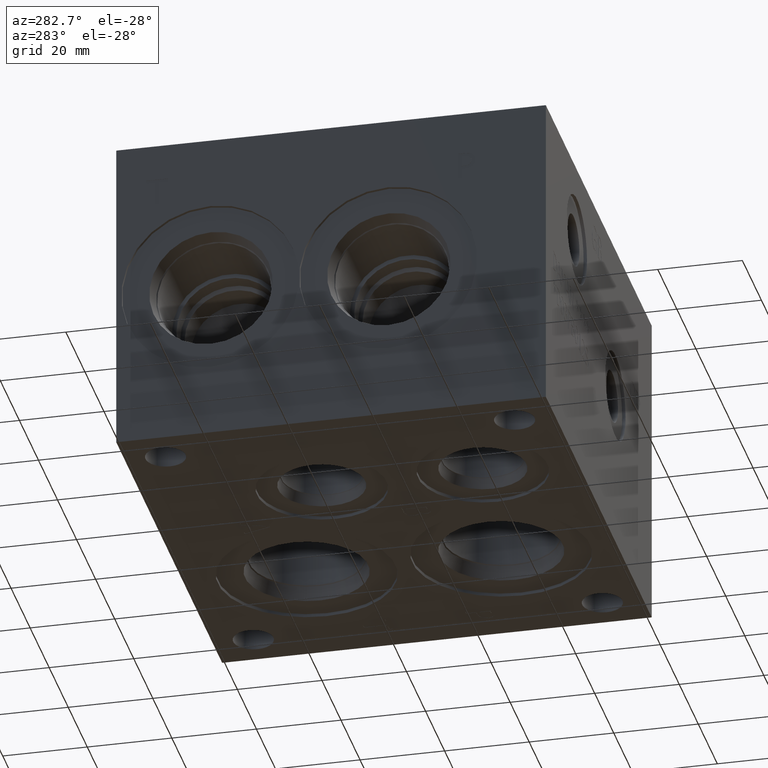
[diagram: clean part render]
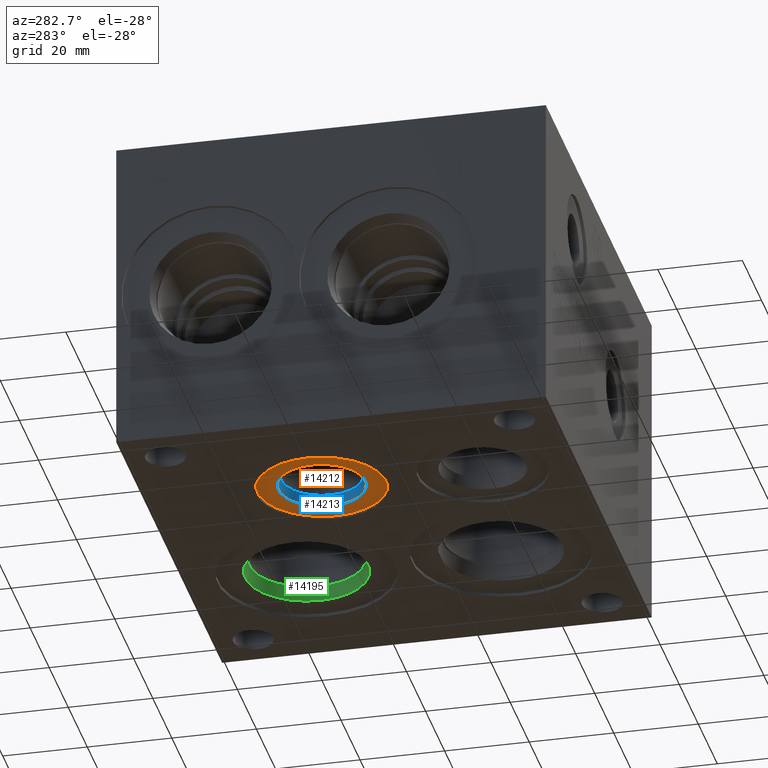
[diagram: same view with three faces highlighted in distinct colors, each labeled with its STEP entity id]
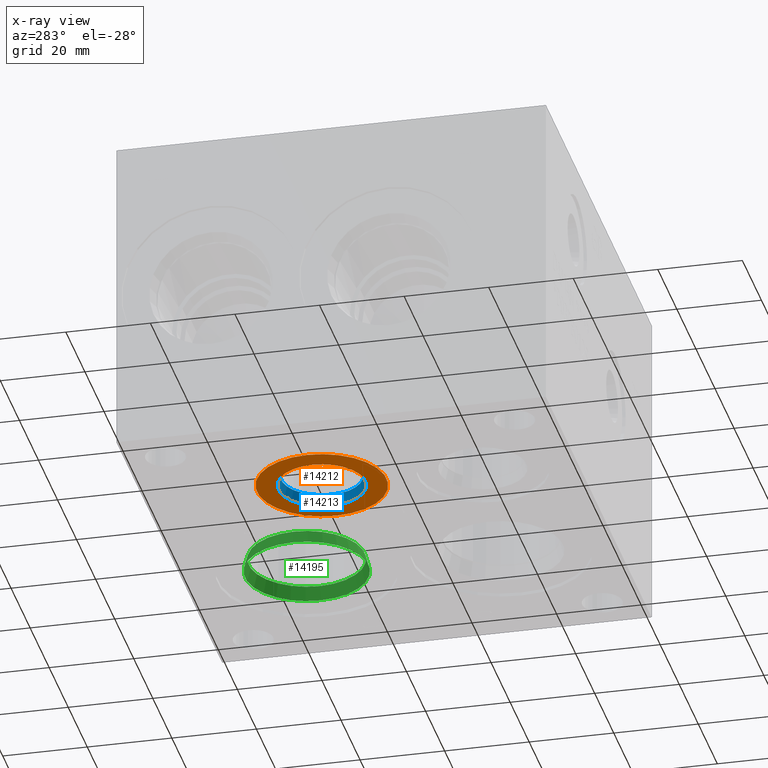
[diagram: x-ray of the same camera — body ghosted, the three highlighted faces saturated]
A machine part, auxiliary view with three faces highlighted in distinct colors.
The next image is the same camera in x-ray (body ghosted, the three faces saturated) — at least one of them is partly hidden behind the body in this view.
Their STEP definitions:

[orange] entity #14212 — the highlighted planar face has unit normal (0, 0, 1).
#282=CIRCLE('',#14894,15.3162);
#283=CIRCLE('',#14895,15.3162);
#284=CIRCLE('',#14897,10.2997);
#285=CIRCLE('',#14898,10.2997);
#496=FACE_BOUND('',#2382,.T.);
#899=PLANE('',#14896);
#1565=FACE_OUTER_BOUND('',#2381,.T.);
#2381=EDGE_LOOP('',(#12319,#12320));
#2382=EDGE_LOOP('',(#12321,#12322));
#6704=VERTEX_POINT('',#24389);
#6705=VERTEX_POINT('',#24391);
#6706=VERTEX_POINT('',#24395);
#6707=VERTEX_POINT('',#24396);
#8628=EDGE_CURVE('',#6704,#6705,#282,.T.);
#8629=EDGE_CURVE('',#6705,#6704,#283,.T.);
#8630=EDGE_CURVE('',#6706,#6707,#284,.T.);
#8631=EDGE_CURVE('',#6707,#6706,#285,.T.);
#12319=ORIENTED_EDGE('',*,*,#8629,.F.);
#12320=ORIENTED_EDGE('',*,*,#8628,.F.);
#12321=ORIENTED_EDGE('',*,*,#8630,.T.);
#12322=ORIENTED_EDGE('',*,*,#8631,.T.);
#14212=ADVANCED_FACE('',(#1565,#496),#899,.F.);
#14894=AXIS2_PLACEMENT_3D('',#24392,#17486,#17487);
#14895=AXIS2_PLACEMENT_3D('',#24393,#17488,#17489);
#14896=AXIS2_PLACEMENT_3D('',#24394,#17490,#17491);
#14897=AXIS2_PLACEMENT_3D('',#24397,#17492,#17493);
#14898=AXIS2_PLACEMENT_3D('',#24398,#17494,#17495);
#17486=DIRECTION('center_axis',(0.,0.,1.));
#17487=DIRECTION('ref_axis',(1.,0.,0.));
#17488=DIRECTION('center_axis',(0.,0.,1.));
#17489=DIRECTION('ref_axis',(1.,0.,0.));
#17490=DIRECTION('center_axis',(0.,0.,1.));
#17491=DIRECTION('ref_axis',(1.,0.,0.));
#17492=DIRECTION('center_axis',(0.,0.,1.));
#17493=DIRECTION('ref_axis',(1.,0.,0.));
#17494=DIRECTION('center_axis',(0.,0.,1.));
#17495=DIRECTION('ref_axis',(1.,0.,0.));
#24389=CARTESIAN_POINT('',(17.2212,60.325,0.7874));
#24391=CARTESIAN_POINT('',(47.8536,60.325,0.7874));
#24392=CARTESIAN_POINT('Origin',(32.5374,60.325,0.7874));
#24393=CARTESIAN_POINT('Origin',(32.5374,60.325,0.7874));
#24394=CARTESIAN_POINT('Origin',(42.8371,60.325,0.7874));
#24395=CARTESIAN_POINT('',(42.8371,60.325,0.7874));
#24396=CARTESIAN_POINT('',(22.2377,60.325,0.787399999999997));
#24397=CARTESIAN_POINT('Origin',(32.5374,60.325,0.7874));
#24398=CARTESIAN_POINT('Origin',(32.5374,60.325,0.7874));

[blue] entity #14213 — the highlighted conical surface has half-angle 15 deg.
#108=CONICAL_SURFACE('',#14899,9.96315,0.261799387657294);
#284=CIRCLE('',#14897,10.2997);
#285=CIRCLE('',#14898,10.2997);
#286=CIRCLE('',#14900,9.6266);
#287=CIRCLE('',#14901,9.6266);
#1566=FACE_OUTER_BOUND('',#2383,.T.);
#2383=EDGE_LOOP('',(#12323,#12324,#12325,#12326,#12327,#12328));
#3717=LINE('',#24401,#5002);
#5002=VECTOR('',#17498,9.96315);
#6706=VERTEX_POINT('',#24395);
#6707=VERTEX_POINT('',#24396);
#6708=VERTEX_POINT('',#24400);
#6709=VERTEX_POINT('',#24402);
#8630=EDGE_CURVE('',#6706,#6707,#284,.T.);
#8631=EDGE_CURVE('',#6707,#6706,#285,.T.);
#8632=EDGE_CURVE('',#6707,#6708,#3717,.T.);
#8633=EDGE_CURVE('',#6708,#6709,#286,.T.);
#8634=EDGE_CURVE('',#6709,#6708,#287,.T.);
#12323=ORIENTED_EDGE('',*,*,#8630,.F.);
#12324=ORIENTED_EDGE('',*,*,#8631,.F.);
#12325=ORIENTED_EDGE('',*,*,#8632,.T.);
#12326=ORIENTED_EDGE('',*,*,#8633,.T.);
#12327=ORIENTED_EDGE('',*,*,#8634,.T.);
#12328=ORIENTED_EDGE('',*,*,#8632,.F.);
#14213=ADVANCED_FACE('',(#1566),#108,.F.);
#14897=AXIS2_PLACEMENT_3D('',#24397,#17492,#17493);
#14898=AXIS2_PLACEMENT_3D('',#24398,#17494,#17495);
#14899=AXIS2_PLACEMENT_3D('',#24399,#17496,#17497);
#14900=AXIS2_PLACEMENT_3D('',#24403,#17499,#17500);
#14901=AXIS2_PLACEMENT_3D('',#24404,#17501,#17502);
#17492=DIRECTION('center_axis',(0.,0.,1.));
#17493=DIRECTION('ref_axis',(1.,0.,0.));
#17494=DIRECTION('center_axis',(0.,0.,1.));
#17495=DIRECTION('ref_axis',(1.,0.,0.));
#17496=DIRECTION('center_axis',(0.,0.,-1.));
#17497=DIRECTION('ref_axis',(1.,0.,0.));
#17498=DIRECTION('',(0.258819044965499,3.16961914975373E-17,0.965925826325783));
#17499=DIRECTION('center_axis',(0.,0.,1.));
#17500=DIRECTION('ref_axis',(1.,0.,0.));
#17501=DIRECTION('center_axis',(0.,0.,1.));
#17502=DIRECTION('ref_axis',(1.,0.,0.));
#24395=CARTESIAN_POINT('',(42.8371,60.325,0.7874));
#24396=CARTESIAN_POINT('',(22.2377,60.325,0.787399999999997));
#24397=CARTESIAN_POINT('Origin',(32.5374,60.325,0.7874));
#24398=CARTESIAN_POINT('Origin',(32.5374,60.325,0.7874));
#24399=CARTESIAN_POINT('Origin',(32.5374,60.325,2.0434217));
#24400=CARTESIAN_POINT('',(22.9108,60.325,3.2994434));
#24401=CARTESIAN_POINT('',(22.57425,60.325,2.0434217));
#24402=CARTESIAN_POINT('',(42.164,60.325,3.2994434));
#24403=CARTESIAN_POINT('Origin',(32.5374,60.325,3.2994434));
#24404=CARTESIAN_POINT('Origin',(32.5374,60.325,3.2994434));

[green] entity #14195 — the highlighted conical surface has half-angle 15 deg.
#102=CONICAL_SURFACE('',#14853,14.15415,0.261799389532321);
#256=CIRCLE('',#14851,14.5923);
#257=CIRCLE('',#14852,14.5923);
#258=CIRCLE('',#14854,13.716);
#259=CIRCLE('',#14855,13.716);
#1548=FACE_OUTER_BOUND('',#2361,.T.);
#2361=EDGE_LOOP('',(#12235,#12236,#12237,#12238,#12239,#12240));
#3703=LINE('',#24311,#4988);
#4988=VECTOR('',#17392,14.15415);
#6676=VERTEX_POINT('',#24305);
#6677=VERTEX_POINT('',#24306);
#6678=VERTEX_POINT('',#24310);
#6679=VERTEX_POINT('',#24312);
#8588=EDGE_CURVE('',#6676,#6677,#256,.T.);
#8589=EDGE_CURVE('',#6677,#6676,#257,.T.);
#8590=EDGE_CURVE('',#6677,#6678,#3703,.T.);
#8591=EDGE_CURVE('',#6678,#6679,#258,.T.);
#8592=EDGE_CURVE('',#6679,#6678,#259,.T.);
#12235=ORIENTED_EDGE('',*,*,#8588,.F.);
#12236=ORIENTED_EDGE('',*,*,#8589,.F.);
#12237=ORIENTED_EDGE('',*,*,#8590,.T.);
#12238=ORIENTED_EDGE('',*,*,#8591,.T.);
#12239=ORIENTED_EDGE('',*,*,#8592,.T.);
#12240=ORIENTED_EDGE('',*,*,#8590,.F.);
#14195=ADVANCED_FACE('',(#1548),#102,.F.);
#14851=AXIS2_PLACEMENT_3D('',#24307,#17386,#17387);
#14852=AXIS2_PLACEMENT_3D('',#24308,#17388,#17389);
#14853=AXIS2_PLACEMENT_3D('',#24309,#17390,#17391);
#14854=AXIS2_PLACEMENT_3D('',#24313,#17393,#17394);
#14855=AXIS2_PLACEMENT_3D('',#24314,#17395,#17396);
#17386=DIRECTION('center_axis',(0.,0.,1.));
#17387=DIRECTION('ref_axis',(1.,0.,0.));
#17388=DIRECTION('center_axis',(0.,0.,1.));
#17389=DIRECTION('ref_axis',(1.,0.,0.));
#17390=DIRECTION('center_axis',(0.,0.,-1.));
#17391=DIRECTION('ref_axis',(1.,0.,0.));
#17392=DIRECTION('',(0.258819046776636,3.16961917193377E-17,0.96592582584049));
#17393=DIRECTION('center_axis',(0.,0.,1.));
#17394=DIRECTION('ref_axis',(1.,0.,0.));
#17395=DIRECTION('center_axis',(0.,0.,1.));
#17396=DIRECTION('ref_axis',(1.,0.,0.));
#24305=CARTESIAN_POINT('',(87.6173,73.025,0.7874));
#24306=CARTESIAN_POINT('',(58.4327,73.025,0.7874));
#24307=CARTESIAN_POINT('Origin',(73.025,73.025,0.7874));
#24308=CARTESIAN_POINT('Origin',(73.025,73.025,0.7874));
#24309=CARTESIAN_POINT('Origin',(73.025,73.025,2.42259805));
#24310=CARTESIAN_POINT('',(59.309,73.025,4.0577961));
#24311=CARTESIAN_POINT('',(58.87085,73.025,2.42259805));
#24312=CARTESIAN_POINT('',(86.741,73.025,4.0577961));
#24313=CARTESIAN_POINT('Origin',(73.025,73.025,4.0577961));
#24314=CARTESIAN_POINT('Origin',(73.025,73.025,4.0577961));